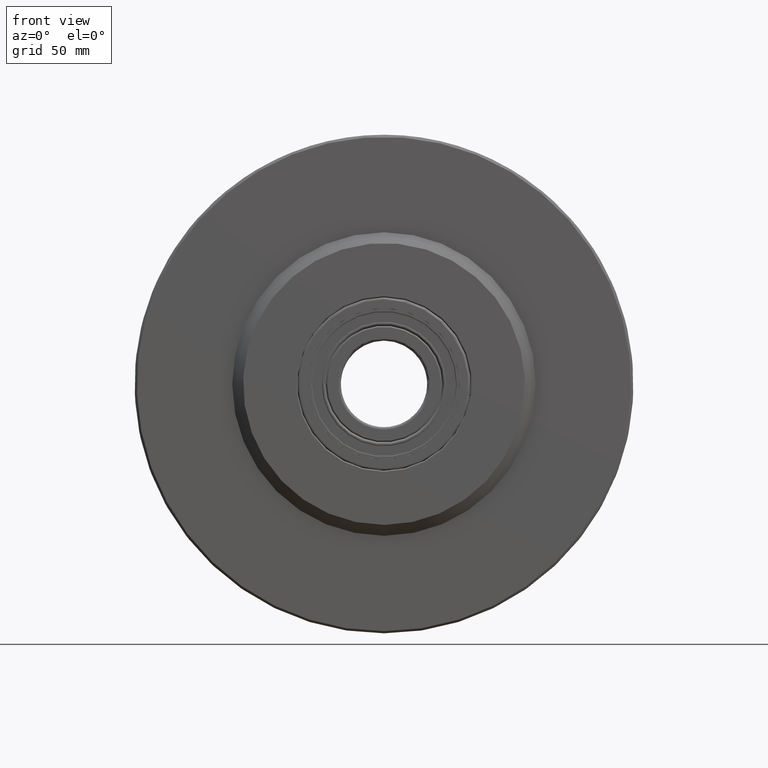
[diagram: clean part render]
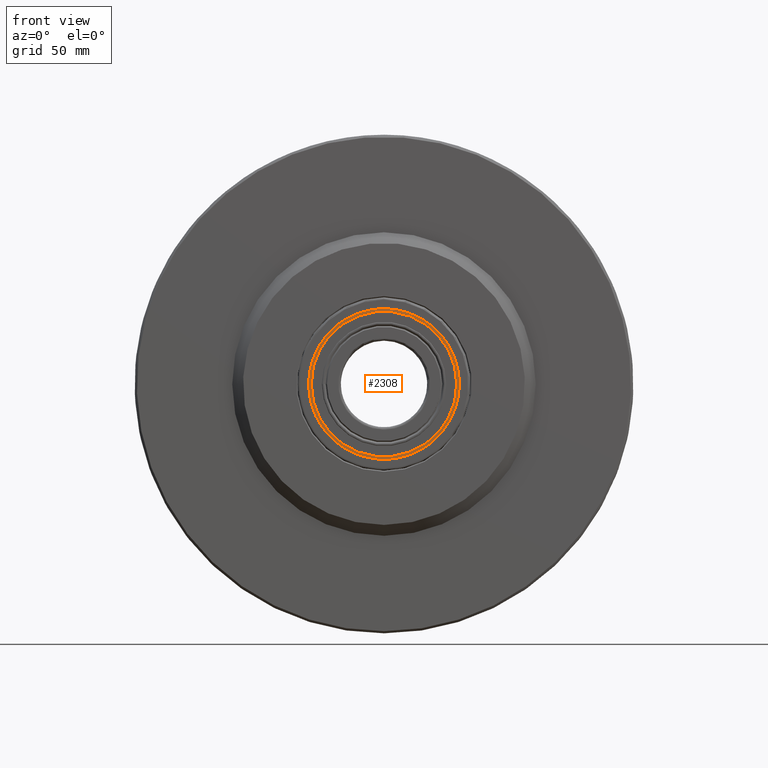
[diagram: same view with one face highlighted and labeled with its STEP entity id]
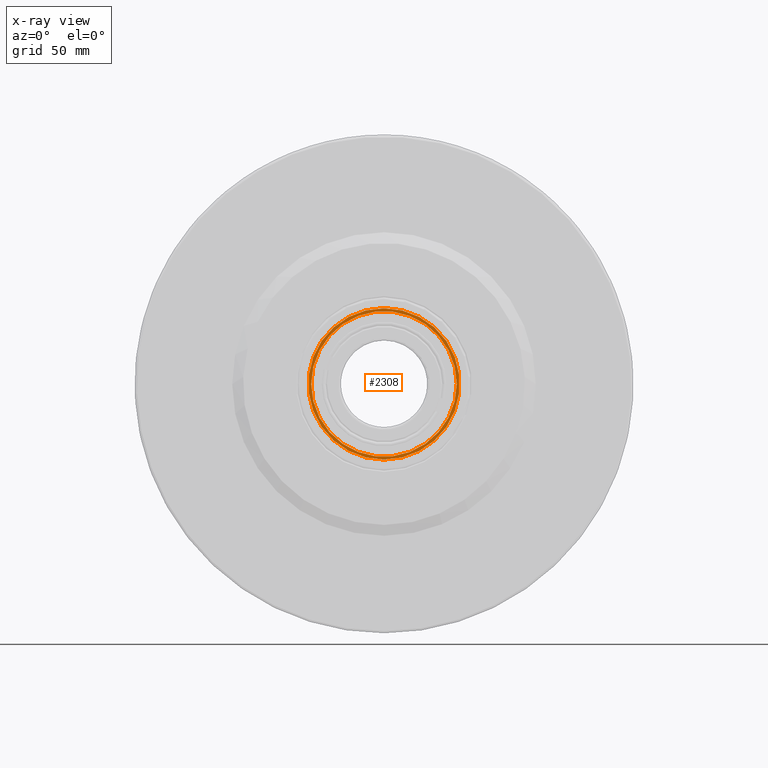
[diagram: x-ray of the same camera — body ghosted, the highlighted face saturated]
A machine part, front view. The second image highlights one B-rep face of the part: STEP entity #2308.
The next image is the same camera in x-ray: the body ghosted, the highlighted face saturated — about 0% of this face is hidden behind the body in this view.
In plain terms, the highlighted planar face has unit normal (0, -1, 0).
Its self-contained STEP definition (entity closure, byte-faithful):
#214=FACE_BOUND('',#544,.T.);
#282=PLANE('',#2624);
#366=FACE_OUTER_BOUND('',#543,.T.);
#543=EDGE_LOOP('',(#1851));
#544=EDGE_LOOP('',(#1852));
#910=CIRCLE('',#2599,34.9349);
#912=CIRCLE('',#2602,33.5589);
#1109=VERTEX_POINT('',#4018);
#1111=VERTEX_POINT('',#4024);
#1377=EDGE_CURVE('',#1109,#1109,#910,.T.);
#1380=EDGE_CURVE('',#1111,#1111,#912,.T.);
#1851=ORIENTED_EDGE('',*,*,#1377,.F.);
#1852=ORIENTED_EDGE('',*,*,#1380,.T.);
#2308=ADVANCED_FACE('',(#366,#214),#282,.T.);
#2599=AXIS2_PLACEMENT_3D('',#4020,#3189,#3190);
#2602=AXIS2_PLACEMENT_3D('',#4026,#3196,#3197);
#2624=AXIS2_PLACEMENT_3D('',#4066,#3248,#3249);
#3189=DIRECTION('center_axis',(-1.,0.,-1.22460635382238E-16));
#3190=DIRECTION('ref_axis',(0.,1.,0.));
#3196=DIRECTION('center_axis',(-1.,0.,-1.22460635382238E-16));
#3197=DIRECTION('ref_axis',(0.,1.,0.));
#3248=DIRECTION('center_axis',(1.,6.12303176911189E-17,1.22460635382238E-16));
#3249=DIRECTION('ref_axis',(6.12303176911189E-17,-1.,7.4983036091107E-33));
#4018=CARTESIAN_POINT('',(17.76,-4.27829134635329E-15,-34.9349));
#4020=CARTESIAN_POINT('Origin',(17.76,0.,1.0727551659484E-15));
#4024=CARTESIAN_POINT('',(17.76,-33.5589,-3.03688905078057E-15));
#4026=CARTESIAN_POINT('Origin',(17.76,0.,1.0727551659484E-15));
#4066=CARTESIAN_POINT('Origin',(17.76,34.2469,1.0727551659484E-15));